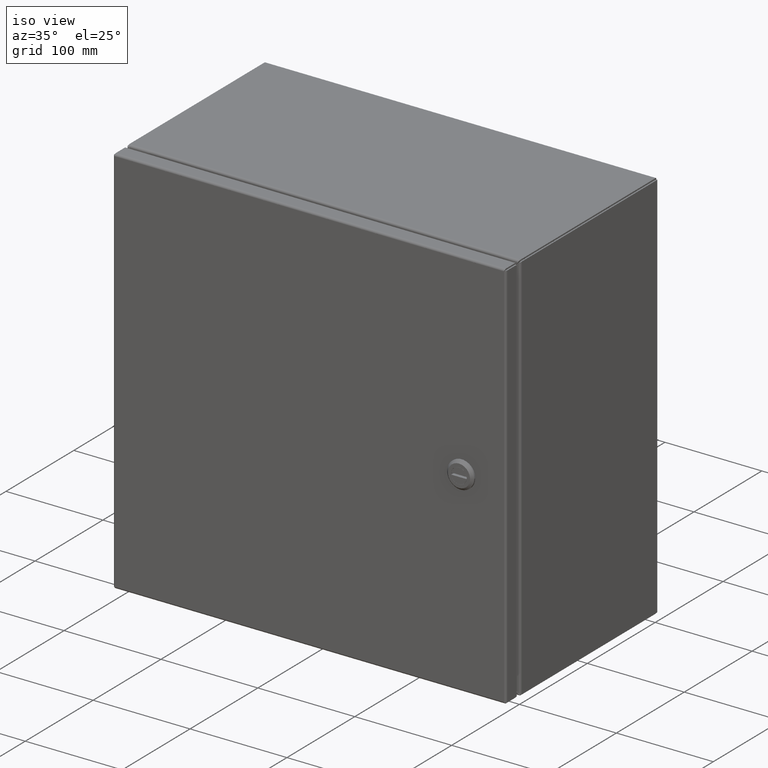
[diagram: clean part render]
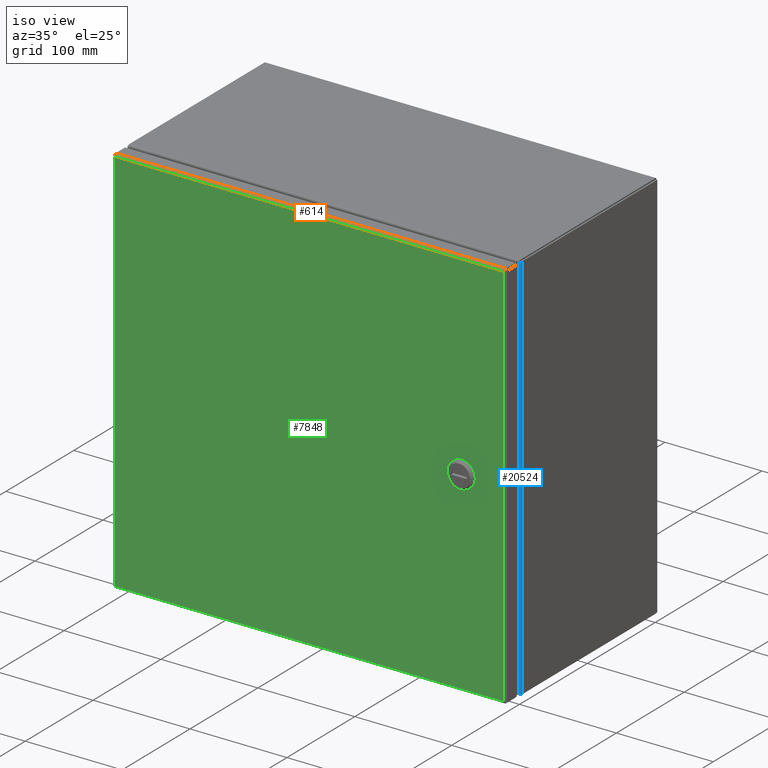
[diagram: same view with three faces highlighted in distinct colors, each labeled with its STEP entity id]
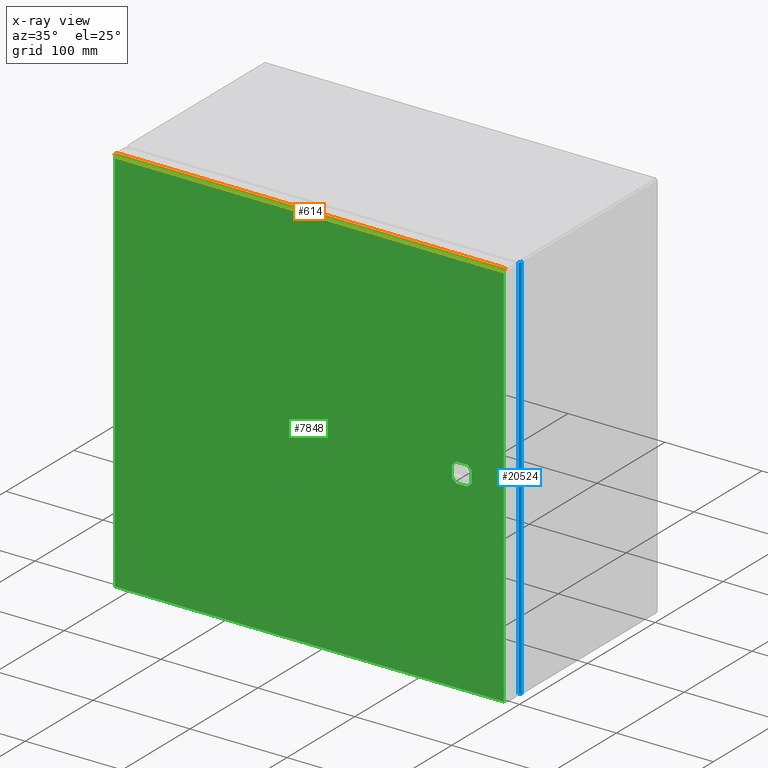
[diagram: x-ray of the same camera — body ghosted, the three highlighted faces saturated]
A machine part, iso view with three faces highlighted in distinct colors.
The next image is the same camera in x-ray (body ghosted, the three faces saturated) — at least one of them is partly hidden behind the body in this view.
Their STEP definitions:

[orange] entity #614 — the highlighted cylindrical surface (edge-blend (fillet) strip) has radius 2.1844 mm, axis along (1, 0, 0).
#56 = CARTESIAN_POINT ( 'NONE',  ( 7.929921259842518388, -8.735000000000001208, 7.898500000000002075 ) ) ;
#98 = EDGE_CURVE ( 'NONE', #12473, #16523, #243, .T. ) ;
#218 = CARTESIAN_POINT ( 'NONE',  ( -7.896000000000004349, -8.735000000000001208, 7.898500000000001187 ) ) ;
#243 = B_SPLINE_CURVE_WITH_KNOTS ( 'NONE', 3,
 ( #8159, #13393, #21610, #11615 ),
 .UNSPECIFIED., .F., .F.,
 ( 4, 4 ),
 ( 0.0000000000000000000, 0.001454480063771835217 ),
 .UNSPECIFIED. ) ;
#306 = ORIENTED_EDGE ( 'NONE', *, *, #4059, .T. ) ;
#421 = CARTESIAN_POINT ( 'NONE',  ( -7.924921259842524712, -8.735000000000001208, 7.898500000000001187 ) ) ;
#564 = CYLINDRICAL_SURFACE ( 'NONE', #7381, 0.08600000000000011802 ) ;
#614 = ADVANCED_FACE ( 'NONE', ( #20884 ), #564, .T. ) ;
#617 = CARTESIAN_POINT ( 'NONE',  ( -7.915345180737255681, -8.815943682191122122, 7.931954109456678559 ) ) ;
#794 = VERTEX_POINT ( 'NONE', #16177 ) ;
#859 = VECTOR ( 'NONE', #2984, 39.37007874015748854 ) ;
#973 = EDGE_CURVE ( 'NONE', #11959, #5684, #20820, .T. ) ;
#1565 = EDGE_CURVE ( 'NONE', #19984, #11959, #9009, .T. ) ;
#1661 = DIRECTION ( 'NONE',  ( 1.000000000000000000, 3.749151804555340178E-33, 6.123031769111889989E-17 ) ) ;
#1906 = LINE ( 'NONE', #8324, #19960 ) ;
#1992 = AXIS2_PLACEMENT_3D ( 'NONE', #421, #12187, #8952 ) ;
#2300 = EDGE_CURVE ( 'NONE', #16523, #19984, #12790, .T. ) ;
#2663 = VERTEX_POINT ( 'NONE', #20036 ) ;
#2984 = DIRECTION ( 'NONE',  ( 0.7071043341611730204, -0.002630821348559798847, -0.7071043341611730204 ) ) ;
#3491 = DIRECTION ( 'NONE',  ( 0.0000000000000000000, 0.0000000000000000000, -1.000000000000000000 ) ) ;
#4000 = DIRECTION ( 'NONE',  ( 1.000000000000000000, 3.749151804555340178E-33, 6.123031769111889989E-17 ) ) ;
#4059 = EDGE_CURVE ( 'NONE', #8098, #12473, #13990, .T. ) ;
#4060 = CIRCLE ( 'NONE', #16444, 0.08600000000000011802 ) ;
#4099 = CARTESIAN_POINT ( 'NONE',  ( 7.929921259842518388, -8.734999999999995879, 7.984500000000001485 ) ) ;
#5111 = CARTESIAN_POINT ( 'NONE',  ( -7.896000000000004349, -8.735000000000001208, 7.898500000000001187 ) ) ;
#5143 = ORIENTED_EDGE ( 'NONE', *, *, #10337, .T. ) ;
#5684 = VERTEX_POINT ( 'NONE', #9637 ) ;
#5849 = B_SPLINE_CURVE_WITH_KNOTS ( 'NONE', 3,
 ( #20942, #617, #12373, #19491 ),
 .UNSPECIFIED., .F., .F.,
 ( 4, 4 ),
 ( 8.148282573819194615E-15, 0.001454724382157404801 ),
 .UNSPECIFIED. ) ;
#6897 = CARTESIAN_POINT ( 'NONE',  ( -7.896000000000004349, -8.734999999999992326, 7.984500000000001485 ) ) ;
#7381 = AXIS2_PLACEMENT_3D ( 'NONE', #218, #4000, #17544 ) ;
#7498 = CARTESIAN_POINT ( 'NONE',  ( -7.896000000000013230, -8.820999789904856669, 7.898690095556093027 ) ) ;
#7603 = CARTESIAN_POINT ( 'NONE',  ( 7.901086572029309529, -8.820999598544636555, 7.898776667696400189 ) ) ;
#7998 = ORIENTED_EDGE ( 'NONE', *, *, #98, .T. ) ;
#8098 = VERTEX_POINT ( 'NONE', #12294 ) ;
#8159 = CARTESIAN_POINT ( 'NONE',  ( 7.901259716088145701, -8.820998823727695282, 7.898949811644330410 ) ) ;
#8324 = CARTESIAN_POINT ( 'NONE',  ( -7.896000000000004349, -8.821000000000001506, 7.898500000000001187 ) ) ;
#8360 = CARTESIAN_POINT ( 'NONE',  ( -7.896000000000004349, -8.821000000000001506, 7.898500000000000298 ) ) ;
#8418 = DIRECTION ( 'NONE',  ( 0.0000000000000000000, 0.0000000000000000000, -1.000000000000000000 ) ) ;
#8726 = ORIENTED_EDGE ( 'NONE', *, *, #973, .T. ) ;
#8831 = CARTESIAN_POINT ( 'NONE',  ( 7.901259716088145701, -8.820998823727695282, 7.898949811644330410 ) ) ;
#8952 = DIRECTION ( 'NONE',  ( 0.0000000000000000000, 0.0000000000000000000, -1.000000000000000000 ) ) ;
#9009 = LINE ( 'NONE', #6897, #19519 ) ;
#9148 = EDGE_LOOP ( 'NONE', ( #21263, #14139, #10297, #306, #7998, #12154, #20709, #8726, #5143, #9759 ) ) ;
#9370 = CARTESIAN_POINT ( 'NONE',  ( 7.900999999999997137, -8.820999789905371813, 7.898690095323894766 ) ) ;
#9637 = CARTESIAN_POINT ( 'NONE',  ( -7.924921259842525600, -8.806821129189394526, 7.945804602333816469 ) ) ;
#9759 = ORIENTED_EDGE ( 'NONE', *, *, #12139, .T. ) ;
#9979 = CARTESIAN_POINT ( 'NONE',  ( 7.929921259842518388, -8.806821129189440711, 7.945804602333748079 ) ) ;
#10297 = ORIENTED_EDGE ( 'NONE', *, *, #12695, .T. ) ;
#10337 = EDGE_CURVE ( 'NONE', #5684, #2663, #5849, .T. ) ;
#11615 = CARTESIAN_POINT ( 'NONE',  ( 7.929921259842518388, -8.806821129189440711, 7.945804602333748079 ) ) ;
#11932 = DIRECTION ( 'NONE',  ( -1.000000000000000000, -3.749151804555340178E-33, -6.123031769111889989E-17 ) ) ;
#11959 = VERTEX_POINT ( 'NONE', #11985 ) ;
#11985 = CARTESIAN_POINT ( 'NONE',  ( -7.924921259842524712, -8.734999999999995879, 7.984499999999999709 ) ) ;
#12139 = EDGE_CURVE ( 'NONE', #2663, #19454, #13072, .T. ) ;
#12154 = ORIENTED_EDGE ( 'NONE', *, *, #2300, .T. ) ;
#12187 = DIRECTION ( 'NONE',  ( 1.000000000000000000, 3.749151804555340178E-33, 6.123031769111889989E-17 ) ) ;
#12228 = AXIS2_PLACEMENT_3D ( 'NONE', #5111, #1661, #8418 ) ;
#12294 = CARTESIAN_POINT ( 'NONE',  ( 7.900999999999997137, -8.820999789905371813, 7.898690095323894766 ) ) ;
#12373 = CARTESIAN_POINT ( 'NONE',  ( -7.905836018001204835, -8.820912072936602399, 7.915534350434738187 ) ) ;
#12473 = VERTEX_POINT ( 'NONE', #8831 ) ;
#12508 = CARTESIAN_POINT ( 'NONE',  ( 7.901259716088145701, -8.820998823727695282, 7.898949811644330410 ) ) ;
#12695 = EDGE_CURVE ( 'NONE', #794, #8098, #4060, .T. ) ;
#12790 = CIRCLE ( 'NONE', #21312, 0.08600000000000011802 ) ;
#12956 = CARTESIAN_POINT ( 'NONE',  ( 7.900999999999997137, -8.735000000000001208, 7.898500000000002075 ) ) ;
#13031 = EDGE_CURVE ( 'NONE', #19454, #19678, #19334, .T. ) ;
#13072 = LINE ( 'NONE', #14426, #859 ) ;
#13393 = CARTESIAN_POINT ( 'NONE',  ( 7.910835951429663560, -8.820912077107259108, 7.915534235179798372 ) ) ;
#13990 = B_SPLINE_CURVE_WITH_KNOTS ( 'NONE', 3,
 ( #9370, #7603, #14283, #12508 ),
 .UNSPECIFIED., .F., .F.,
 ( 4, 4 ),
 ( 0.0000000000000000000, 0.9999103278327431399 ),
 .UNSPECIFIED. ) ;
#14139 = ORIENTED_EDGE ( 'NONE', *, *, #20505, .F. ) ;
#14283 = CARTESIAN_POINT ( 'NONE',  ( 7.901173144058623699, -8.820999276459433602, 7.898863240012140352 ) ) ;
#14426 = CARTESIAN_POINT ( 'NONE',  ( -7.896259739379352993, -8.820998823529922817, 7.898949834935413250 ) ) ;
#15453 = DIRECTION ( 'NONE',  ( -1.000000000000000000, -3.749151804555340178E-33, -6.123031769111889989E-17 ) ) ;
#16177 = CARTESIAN_POINT ( 'NONE',  ( 7.900999999999997137, -8.821000000000001506, 7.898500000000001187 ) ) ;
#16385 = DIRECTION ( 'NONE',  ( 0.0000000000000000000, -4.701319803050120558E-13, -1.000000000000000000 ) ) ;
#16444 = AXIS2_PLACEMENT_3D ( 'NONE', #12956, #17724, #16385 ) ;
#16523 = VERTEX_POINT ( 'NONE', #9979 ) ;
#17544 = DIRECTION ( 'NONE',  ( 0.0000000000000000000, 0.0000000000000000000, -1.000000000000000000 ) ) ;
#17724 = DIRECTION ( 'NONE',  ( -1.000000000000000000, -3.749151804555340178E-33, -6.123031769111889989E-17 ) ) ;
#18771 = DIRECTION ( 'NONE',  ( -1.000000000000000000, -0.0000000000000000000, -0.0000000000000000000 ) ) ;
#19334 = CIRCLE ( 'NONE', #12228, 0.08600000000000011802 ) ;
#19454 = VERTEX_POINT ( 'NONE', #7498 ) ;
#19491 = CARTESIAN_POINT ( 'NONE',  ( -7.896259739379901887, -8.820998823453107818, 7.898949834935960368 ) ) ;
#19519 = VECTOR ( 'NONE', #15453, 39.37007874015748143 ) ;
#19678 = VERTEX_POINT ( 'NONE', #8360 ) ;
#19960 = VECTOR ( 'NONE', #18771, 39.37007874015748143 ) ;
#19984 = VERTEX_POINT ( 'NONE', #4099 ) ;
#20036 = CARTESIAN_POINT ( 'NONE',  ( -7.896259739379901887, -8.820998823453107818, 7.898949834935960368 ) ) ;
#20505 = EDGE_CURVE ( 'NONE', #794, #19678, #1906, .T. ) ;
#20709 = ORIENTED_EDGE ( 'NONE', *, *, #1565, .T. ) ;
#20820 = CIRCLE ( 'NONE', #1992, 0.08600000000000011802 ) ;
#20884 = FACE_OUTER_BOUND ( 'NONE', #9148, .T. ) ;
#20942 = CARTESIAN_POINT ( 'NONE',  ( -7.924921259842525600, -8.806821129189394526, 7.945804602333816469 ) ) ;
#21263 = ORIENTED_EDGE ( 'NONE', *, *, #13031, .T. ) ;
#21312 = AXIS2_PLACEMENT_3D ( 'NONE', #56, #11932, #3491 ) ;
#21610 = CARTESIAN_POINT ( 'NONE',  ( 7.920345236907576414, -8.815943628681019106, 7.931954190699434193 ) ) ;

[blue] entity #20524 — the highlighted cylindrical surface (edge-blend (fillet) strip) has radius 2.1844 mm, axis along (-0, -0, -1).
#230 = ORIENTED_EDGE ( 'NONE', *, *, #19424, .T. ) ;
#345 = CARTESIAN_POINT ( 'NONE',  ( 7.999410494781773906, -7.925575828238409670, 7.938514084030509288 ) ) ;
#962 = VERTEX_POINT ( 'NONE', #2193 ) ;
#1176 = CARTESIAN_POINT ( 'NONE',  ( 7.914000000000000590, -8.000000000000001776, -7.906020262877001770 ) ) ;
#1453 = CYLINDRICAL_SURFACE ( 'NONE', #13196, 0.08600000000000011802 ) ;
#1526 = CARTESIAN_POINT ( 'NONE',  ( 8.000000000000001776, -7.914000000000000590, -55.44149999999999778 ) ) ;
#1572 = CARTESIAN_POINT ( 'NONE',  ( 8.000000000000001776, -7.914000000000000590, 7.939822017203383098 ) ) ;
#1671 = CARTESIAN_POINT ( 'NONE',  ( 7.935542448817883177, -7.997437998095408673, 7.914600544415747230 ) ) ;
#1756 = CARTESIAN_POINT ( 'NONE',  ( 7.997659888773648085, -7.937027409197090932, -7.937026089768807857 ) ) ;
#1772 = VERTEX_POINT ( 'NONE', #19885 ) ;
#1787 = CARTESIAN_POINT ( 'NONE',  ( 7.990883990570386786, -7.952958514397507450, 7.934035660990841343 ) ) ;
#2193 = CARTESIAN_POINT ( 'NONE',  ( 8.000000000000001776, -7.914000000000000590, -7.939822017203383098 ) ) ;
#3327 = CARTESIAN_POINT ( 'NONE',  ( 7.981973914312931129, -7.967899658231941906, -7.930665564002229218 ) ) ;
#3351 = CARTESIAN_POINT ( 'NONE',  ( 7.956206216833925815, -7.989736030276795020, 7.921936387699648918 ) ) ;
#3455 = CARTESIAN_POINT ( 'NONE',  ( 7.914000000000000590, -8.000000000000001776, 7.906020262877001770 ) ) ;
#4866 = VERTEX_POINT ( 'NONE', #1176 ) ;
#5098 = CARTESIAN_POINT ( 'NONE',  ( 7.950988563067475923, -7.991837167479848958, -7.920097798154830393 ) ) ;
#5113 = ORIENTED_EDGE ( 'NONE', *, *, #7092, .T. ) ;
#5200 = CARTESIAN_POINT ( 'NONE',  ( 7.965246317501934570, -7.983286916938586941, -7.924960500121208895 ) ) ;
#5306 = CARTESIAN_POINT ( 'NONE',  ( 7.935527370502107658, -7.997998131381565123, -7.914643753435330886 ) ) ;
#5682 = ORIENTED_EDGE ( 'NONE', *, *, #5795, .T. ) ;
#5795 = EDGE_CURVE ( 'NONE', #4866, #962, #11113, .T. ) ;
#6299 = ORIENTED_EDGE ( 'NONE', *, *, #12350, .T. ) ;
#6432 = B_SPLINE_CURVE_WITH_KNOTS ( 'NONE', 3,
 ( #1572, #11787, #345, #20359, #8329, #1787, #18673, #17112, #13901, #18567, #3351, #10449, #1671, #20695, #8429, #3455 ),
 .UNSPECIFIED., .F., .F.,
 ( 4, 2, 2, 2, 2, 2, 2, 4 ),
 ( 0.0000000000000000000, 0.0004413482791197840789, 0.0008826965582395681579, 0.001324044837359352345, 0.001765393116479136316, 0.002648089674718704691, 0.003089437953838497768, 0.003530786232958290846 ),
 .UNSPECIFIED. ) ;
#6652 = DIRECTION ( 'NONE',  ( -1.000000000000000000, 0.0000000000000000000, 0.0000000000000000000 ) ) ;
#6970 = CARTESIAN_POINT ( 'NONE',  ( 7.999999999999996447, -7.925669498350496944, -7.938604778824337238 ) ) ;
#7076 = CARTESIAN_POINT ( 'NONE',  ( 7.969698554293106696, -7.979772924488679919, -7.926463950099536859 ) ) ;
#7092 = EDGE_CURVE ( 'NONE', #1772, #7672, #6432, .T. ) ;
#7672 = VERTEX_POINT ( 'NONE', #17538 ) ;
#8281 = DIRECTION ( 'NONE',  ( -9.854884855800299718E-18, -9.854884855800299718E-18, -1.000000000000000000 ) ) ;
#8329 = CARTESIAN_POINT ( 'NONE',  ( 7.995377535878722242, -7.942400889147969600, 7.936018136723936856 ) ) ;
#8407 = CARTESIAN_POINT ( 'NONE',  ( 7.924766499293923516, -8.000000000000003553, -7.910652935628673887 ) ) ;
#8429 = CARTESIAN_POINT ( 'NONE',  ( 7.919391404884194685, -8.000000000000001776, 7.908340108336366470 ) ) ;
#8642 = CARTESIAN_POINT ( 'NONE',  ( 7.955906145087128678, -7.989304295497003494, -7.921782023296086273 ) ) ;
#10397 = LINE ( 'NONE', #13507, #15736 ) ;
#10449 = CARTESIAN_POINT ( 'NONE',  ( 7.940869937943871193, -7.995879998719305881, 7.916529347895193247 ) ) ;
#11113 = B_SPLINE_CURVE_WITH_KNOTS ( 'NONE', 3,
 ( #20438, #8407, #5306, #5098, #8642, #5200, #7076, #3327, #13877, #1756, #6970, #17299 ),
 .UNSPECIFIED., .F., .F.,
 ( 4, 2, 2, 2, 2, 4 ),
 ( 6.206335383118182794E-17, 0.0008804803490555600633, 0.001320720523583358364, 0.001760960698111156556, 0.002641441047166695911, 0.003521921396222235483 ),
 .UNSPECIFIED. ) ;
#11490 = VECTOR ( 'NONE', #13518, 39.37007874015748143 ) ;
#11658 = DIRECTION ( 'NONE',  ( -9.854884855800299718E-18, -9.854884855800299718E-18, -1.000000000000000000 ) ) ;
#11787 = CARTESIAN_POINT ( 'NONE',  ( 8.000000000000001776, -7.919843763973113404, 7.939212457685702162 ) ) ;
#12350 = EDGE_CURVE ( 'NONE', #962, #1772, #15172, .T. ) ;
#13196 = AXIS2_PLACEMENT_3D ( 'NONE', #21882, #11658, #6652 ) ;
#13507 = CARTESIAN_POINT ( 'NONE',  ( 7.914000000000000590, -8.000000000000001776, 7.939822017203386650 ) ) ;
#13518 = DIRECTION ( 'NONE',  ( 9.854884855800299718E-18, 2.731123248400743561E-33, 1.000000000000000000 ) ) ;
#13877 = CARTESIAN_POINT ( 'NONE',  ( 7.988626892889636011, -7.958272626097710578, -7.933038852956975973 ) ) ;
#13901 = CARTESIAN_POINT ( 'NONE',  ( 7.977972100963465429, -7.971751724119813254, 7.929296324544951702 ) ) ;
#15172 = LINE ( 'NONE', #1526, #11490 ) ;
#15736 = VECTOR ( 'NONE', #8281, 39.37007874015748143 ) ;
#16477 = EDGE_LOOP ( 'NONE', ( #230, #5682, #6299, #5113 ) ) ;
#16648 = FACE_OUTER_BOUND ( 'NONE', #16477, .T. ) ;
#17112 = CARTESIAN_POINT ( 'NONE',  ( 7.981692681208356177, -7.967349783286268305, 7.930592204684151270 ) ) ;
#17299 = CARTESIAN_POINT ( 'NONE',  ( 8.000000000000001776, -7.914000000000000590, -7.939822017203383098 ) ) ;
#17538 = CARTESIAN_POINT ( 'NONE',  ( 7.914000000000000590, -8.000000000000001776, 7.906020262877001770 ) ) ;
#18567 = CARTESIAN_POINT ( 'NONE',  ( 7.965860475276568486, -7.983521625887532558, 7.925149272820622315 ) ) ;
#18673 = CARTESIAN_POINT ( 'NONE',  ( 7.988142319063445740, -7.957947866725953112, 7.932960341739514476 ) ) ;
#19424 = EDGE_CURVE ( 'NONE', #7672, #4866, #10397, .T. ) ;
#19885 = CARTESIAN_POINT ( 'NONE',  ( 8.000000000000001776, -7.914000000000000590, 7.939822017203383098 ) ) ;
#20359 = CARTESIAN_POINT ( 'NONE',  ( 7.997114291620059490, -7.936824700365364471, 7.936922644997809861 ) ) ;
#20438 = CARTESIAN_POINT ( 'NONE',  ( 7.914000000000000590, -8.000000000000001776, -7.906020262877001770 ) ) ;
#20524 = ADVANCED_FACE ( 'NONE', ( #16648 ), #1453, .T. ) ;
#20695 = CARTESIAN_POINT ( 'NONE',  ( 7.924787443748385840, -7.999496243687168828, 7.910499447133842565 ) ) ;
#21882 = CARTESIAN_POINT ( 'NONE',  ( 7.914000000000000590, -7.914000000000000590, 7.939822017203386650 ) ) ;

[green] entity #7848 — the highlighted planar face has unit normal (0, -1, 0).
#499 = ORIENTED_EDGE ( 'NONE', *, *, #2741, .T. ) ;
#602 = ORIENTED_EDGE ( 'NONE', *, *, #10696, .T. ) ;
#760 = EDGE_CURVE ( 'NONE', #19678, #14008, #19654, .T. ) ;
#794 = VERTEX_POINT ( 'NONE', #16177 ) ;
#894 = LINE ( 'NONE', #9087, #8899 ) ;
#935 = EDGE_CURVE ( 'NONE', #13053, #15660, #16715, .T. ) ;
#943 = CARTESIAN_POINT ( 'NONE',  ( 5.960003391868696987, -8.821000000000001506, -0.3955000000000472027 ) ) ;
#1012 = CARTESIAN_POINT ( 'NONE',  ( 6.586500000000035548, -8.821000000000001506, -0.2309966081312818664 ) ) ;
#1039 = CARTESIAN_POINT ( 'NONE',  ( -7.896000000000004349, -8.821000000000001506, -7.898500000000001187 ) ) ;
#1046 = DIRECTION ( 'NONE',  ( 0.0000000000000000000, 0.0000000000000000000, 1.000000000000000000 ) ) ;
#1205 = CARTESIAN_POINT ( 'NONE',  ( -7.896000000000004349, -8.821000000000001506, -7.898500000000001187 ) ) ;
#1278 = CARTESIAN_POINT ( 'NONE',  ( 5.960003391868696987, -8.821000000000001506, 0.3955000000000473137 ) ) ;
#1906 = LINE ( 'NONE', #8324, #19960 ) ;
#2317 = EDGE_CURVE ( 'NONE', #20024, #7277, #15489, .T. ) ;
#2741 = EDGE_CURVE ( 'NONE', #7277, #13053, #8888, .T. ) ;
#2750 = FACE_OUTER_BOUND ( 'NONE', #5114, .T. ) ;
#3146 = LINE ( 'NONE', #1278, #3312 ) ;
#3297 = DIRECTION ( 'NONE',  ( 0.0000000000000000000, 0.0000000000000000000, -1.000000000000000000 ) ) ;
#3312 = VECTOR ( 'NONE', #8023, 39.37007874015748143 ) ;
#3335 = ORIENTED_EDGE ( 'NONE', *, *, #13973, .T. ) ;
#3722 = VERTEX_POINT ( 'NONE', #6865 ) ;
#4142 = LINE ( 'NONE', #10898, #5834 ) ;
#4208 = CARTESIAN_POINT ( 'NONE',  ( 6.586500000000035548, -8.821000000000001506, -0.2309966081312815611 ) ) ;
#5114 = EDGE_LOOP ( 'NONE', ( #9026, #7756, #13724, #5690 ) ) ;
#5690 = ORIENTED_EDGE ( 'NONE', *, *, #12881, .T. ) ;
#5691 = VECTOR ( 'NONE', #17457, 39.37007874015748143 ) ;
#5834 = VECTOR ( 'NONE', #7345, 39.37007874015748143 ) ;
#5871 = DIRECTION ( 'NONE',  ( -0.0000000000000000000, 0.0000000000000000000, 1.000000000000000000 ) ) ;
#5953 = VERTEX_POINT ( 'NONE', #14635 ) ;
#6020 = DIRECTION ( 'NONE',  ( -1.000000000000000000, 0.0000000000000000000, -1.478294430253980077E-16 ) ) ;
#6292 = EDGE_CURVE ( 'NONE', #13530, #5953, #17693, .T. ) ;
#6865 = CARTESIAN_POINT ( 'NONE',  ( 7.900999999999998913, -8.821000000000001506, -7.898500000000002075 ) ) ;
#7133 = ORIENTED_EDGE ( 'NONE', *, *, #15977, .T. ) ;
#7277 = VERTEX_POINT ( 'NONE', #16200 ) ;
#7345 = DIRECTION ( 'NONE',  ( 1.000000000000000000, 0.0000000000000000000, 0.0000000000000000000 ) ) ;
#7596 = CARTESIAN_POINT ( 'NONE',  ( 5.795499999999957019, -8.821000000000001506, 0.2309966081312799790 ) ) ;
#7756 = ORIENTED_EDGE ( 'NONE', *, *, #20505, .T. ) ;
#7848 = ADVANCED_FACE ( 'NONE', ( #2750, #16276 ), #13292, .T. ) ;
#8023 = DIRECTION ( 'NONE',  ( 0.7071067811865530128, 0.0000000000000000000, 0.7071067811865420216 ) ) ;
#8065 = ORIENTED_EDGE ( 'NONE', *, *, #2317, .T. ) ;
#8324 = CARTESIAN_POINT ( 'NONE',  ( -7.896000000000004349, -8.821000000000001506, 7.898500000000001187 ) ) ;
#8360 = CARTESIAN_POINT ( 'NONE',  ( -7.896000000000004349, -8.821000000000001506, 7.898500000000000298 ) ) ;
#8851 = VECTOR ( 'NONE', #1046, 39.37007874015748143 ) ;
#8888 = LINE ( 'NONE', #9107, #5691 ) ;
#8899 = VECTOR ( 'NONE', #5871, 39.37007874015748143 ) ;
#9026 = ORIENTED_EDGE ( 'NONE', *, *, #15625, .T. ) ;
#9087 = CARTESIAN_POINT ( 'NONE',  ( 7.900999999999997137, -8.821000000000001506, -7.898500000000001187 ) ) ;
#9091 = VERTEX_POINT ( 'NONE', #14736 ) ;
#9107 = CARTESIAN_POINT ( 'NONE',  ( 6.421996608131296469, -8.821000000000001506, 0.3955000000000473137 ) ) ;
#9226 = VERTEX_POINT ( 'NONE', #15165 ) ;
#9750 = DIRECTION ( 'NONE',  ( -0.7071067811865530128, 0.0000000000000000000, -0.7071067811865420216 ) ) ;
#10057 = CARTESIAN_POINT ( 'NONE',  ( 6.586500000000035548, -8.821000000000001506, -0.2309966081312818664 ) ) ;
#10543 = EDGE_LOOP ( 'NONE', ( #7133, #15929, #8065, #499, #20459, #602, #3335, #21583 ) ) ;
#10696 = EDGE_CURVE ( 'NONE', #15660, #9226, #11223, .T. ) ;
#10898 = CARTESIAN_POINT ( 'NONE',  ( -7.896000000000004349, -8.821000000000001506, -7.898500000000001187 ) ) ;
#11223 = LINE ( 'NONE', #1012, #18542 ) ;
#11728 = DIRECTION ( 'NONE',  ( 0.0000000000000000000, -0.0000000000000000000, -1.000000000000000000 ) ) ;
#11988 = CARTESIAN_POINT ( 'NONE',  ( 6.586500000000039989, -8.821000000000001506, 0.2309966081312839759 ) ) ;
#12202 = CARTESIAN_POINT ( 'NONE',  ( 5.960003391868699651, -8.821000000000001506, -0.3955000000000437055 ) ) ;
#12881 = EDGE_CURVE ( 'NONE', #14008, #3722, #4142, .T. ) ;
#13053 = VERTEX_POINT ( 'NONE', #11988 ) ;
#13061 = DIRECTION ( 'NONE',  ( 0.0000000000000000000, -0.0000000000000000000, -1.000000000000000000 ) ) ;
#13292 = PLANE ( 'NONE',  #16363 ) ;
#13530 = VERTEX_POINT ( 'NONE', #12202 ) ;
#13724 = ORIENTED_EDGE ( 'NONE', *, *, #760, .T. ) ;
#13821 = CARTESIAN_POINT ( 'NONE',  ( 6.421996608131296469, -8.821000000000001506, 0.3955000000000473137 ) ) ;
#13973 = EDGE_CURVE ( 'NONE', #9226, #13530, #14265, .T. ) ;
#14008 = VERTEX_POINT ( 'NONE', #1039 ) ;
#14151 = DIRECTION ( 'NONE',  ( 1.000000000000000000, 0.0000000000000000000, 1.478294430253980077E-16 ) ) ;
#14265 = LINE ( 'NONE', #943, #20566 ) ;
#14473 = CARTESIAN_POINT ( 'NONE',  ( 5.795499999999957019, -8.821000000000001506, -0.2309966081312822550 ) ) ;
#14635 = CARTESIAN_POINT ( 'NONE',  ( 5.795499999999957019, -8.821000000000001506, -0.2309966081312825603 ) ) ;
#14736 = CARTESIAN_POINT ( 'NONE',  ( 5.795499999999952578, -8.821000000000001506, 0.2309966081312839759 ) ) ;
#15165 = CARTESIAN_POINT ( 'NONE',  ( 6.421996608131288475, -8.821000000000001506, -0.3955000000000399307 ) ) ;
#15489 = LINE ( 'NONE', #13821, #18843 ) ;
#15625 = EDGE_CURVE ( 'NONE', #3722, #794, #894, .T. ) ;
#15635 = VECTOR ( 'NONE', #19607, 39.37007874015748854 ) ;
#15660 = VERTEX_POINT ( 'NONE', #4208 ) ;
#15929 = ORIENTED_EDGE ( 'NONE', *, *, #21802, .T. ) ;
#15977 = EDGE_CURVE ( 'NONE', #5953, #9091, #19819, .T. ) ;
#16177 = CARTESIAN_POINT ( 'NONE',  ( 7.900999999999997137, -8.821000000000001506, 7.898500000000001187 ) ) ;
#16200 = CARTESIAN_POINT ( 'NONE',  ( 6.421996608131295581, -8.821000000000001506, 0.3955000000000473692 ) ) ;
#16276 = FACE_BOUND ( 'NONE', #10543, .T. ) ;
#16363 = AXIS2_PLACEMENT_3D ( 'NONE', #16718, #20076, #11728 ) ;
#16592 = CARTESIAN_POINT ( 'NONE',  ( 5.960003391868696987, -8.821000000000001506, 0.3955000000000473692 ) ) ;
#16715 = LINE ( 'NONE', #10057, #21846 ) ;
#16718 = CARTESIAN_POINT ( 'NONE',  ( -7.896000000000004349, -8.821000000000001506, -7.898500000000001187 ) ) ;
#17457 = DIRECTION ( 'NONE',  ( 0.7071067811865530128, 0.0000000000000000000, -0.7071067811865420216 ) ) ;
#17693 = LINE ( 'NONE', #14473, #15635 ) ;
#18542 = VECTOR ( 'NONE', #9750, 39.37007874015748143 ) ;
#18771 = DIRECTION ( 'NONE',  ( -1.000000000000000000, -0.0000000000000000000, -0.0000000000000000000 ) ) ;
#18843 = VECTOR ( 'NONE', #14151, 39.37007874015748143 ) ;
#19607 = DIRECTION ( 'NONE',  ( -0.7071067811865524577, 0.0000000000000000000, 0.7071067811865424657 ) ) ;
#19654 = LINE ( 'NONE', #1205, #20165 ) ;
#19678 = VERTEX_POINT ( 'NONE', #8360 ) ;
#19819 = LINE ( 'NONE', #7596, #8851 ) ;
#19960 = VECTOR ( 'NONE', #18771, 39.37007874015748143 ) ;
#20024 = VERTEX_POINT ( 'NONE', #16592 ) ;
#20076 = DIRECTION ( 'NONE',  ( 0.0000000000000000000, -1.000000000000000000, 0.0000000000000000000 ) ) ;
#20165 = VECTOR ( 'NONE', #13061, 39.37007874015748143 ) ;
#20459 = ORIENTED_EDGE ( 'NONE', *, *, #935, .T. ) ;
#20505 = EDGE_CURVE ( 'NONE', #794, #19678, #1906, .T. ) ;
#20566 = VECTOR ( 'NONE', #6020, 39.37007874015748143 ) ;
#21583 = ORIENTED_EDGE ( 'NONE', *, *, #6292, .T. ) ;
#21802 = EDGE_CURVE ( 'NONE', #9091, #20024, #3146, .T. ) ;
#21846 = VECTOR ( 'NONE', #3297, 39.37007874015748143 ) ;